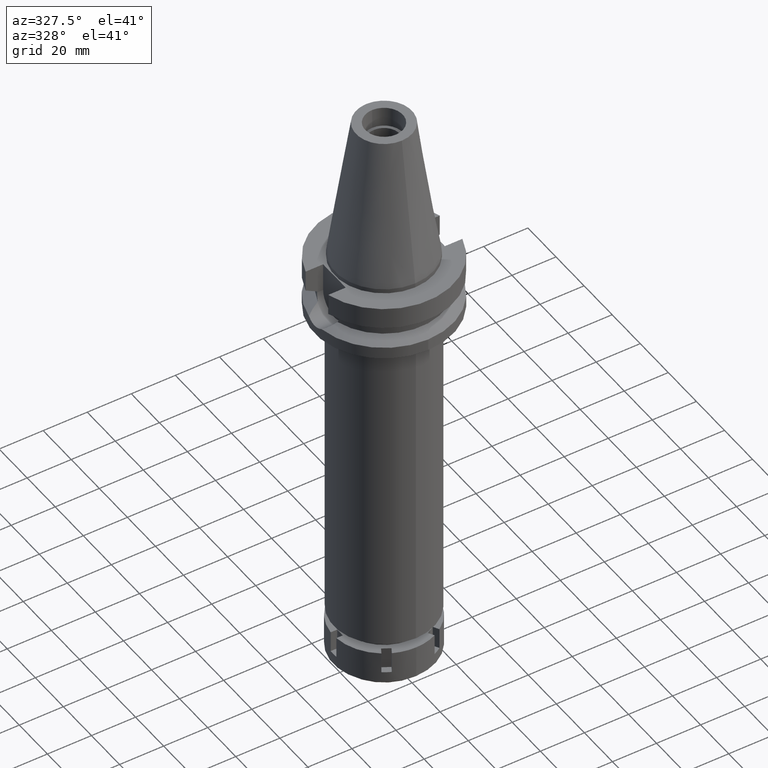
[diagram: clean part render]
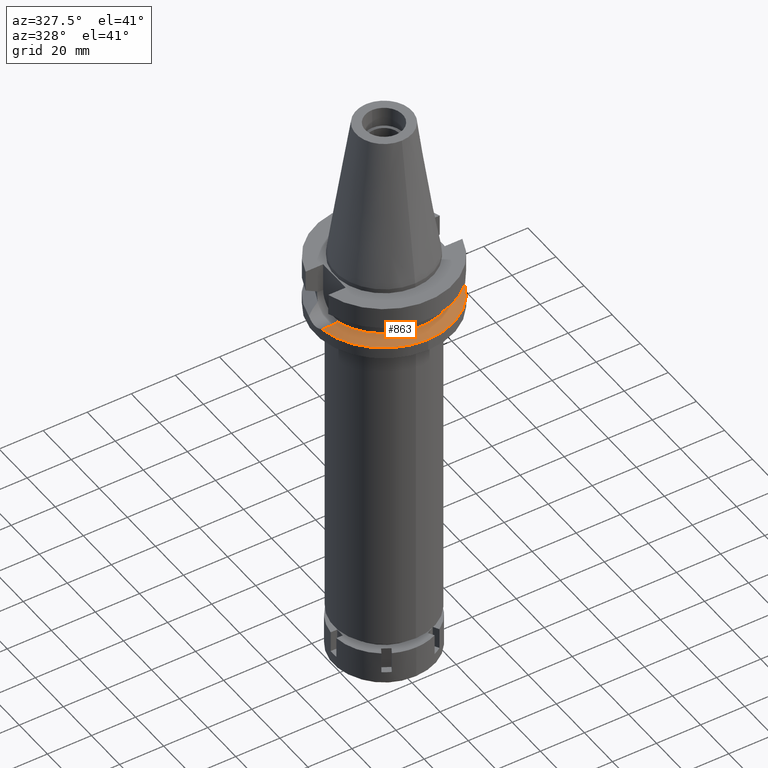
[diagram: same view with one face highlighted and labeled with its STEP entity id]
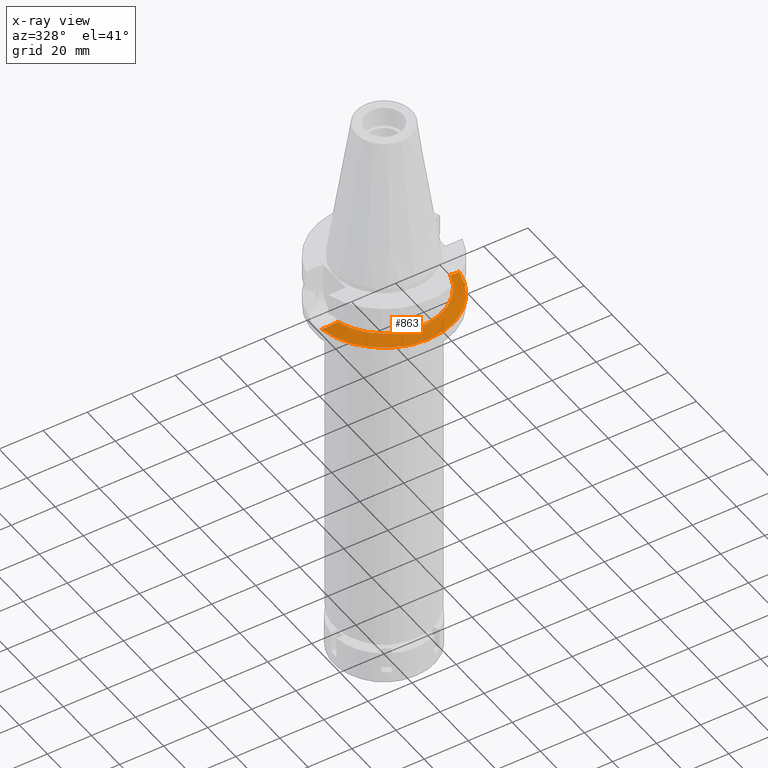
[diagram: x-ray of the same camera — body ghosted, the highlighted face saturated]
A machine part, auxiliary view. The second image highlights one B-rep face of the part: STEP entity #863.
The next image is the same camera in x-ray: the body ghosted, the highlighted face saturated — about 0% of this face is hidden behind the body in this view.
In plain terms, the highlighted conical surface has half-angle 60 deg.
Its self-contained STEP definition (entity closure, byte-faithful):
#56 = CARTESIAN_POINT ( 'NONE',  ( -31.17899877608999759, -4.485536235554000051, -21.63449434733000132 ) ) ;
#236 = CARTESIAN_POINT ( 'NONE',  ( 28.58345074653626128, -6.005726142762083164, -20.31044813112859870 ) ) ;
#253 = CARTESIAN_POINT ( 'NONE',  ( 31.17899877608999759, -4.485536235554000051, -21.63449434733000132 ) ) ;
#298 = CARTESIAN_POINT ( 'NONE',  ( 28.66615134121891373, -5.967711543033243693, -20.35268727737810224 ) ) ;
#476 = ORIENTED_EDGE ( 'NONE', *, *, #1170, .F. ) ;
#512 = CARTESIAN_POINT ( 'NONE',  ( 0.0000000000000000000, 0.0000000000000000000, -20.19111867435999841 ) ) ;
#539 = VERTEX_POINT ( 'NONE', #2566 ) ;
#572 = CARTESIAN_POINT ( 'NONE',  ( -28.63767204220782858, -5.980824232938217300, -20.33815959003102947 ) ) ;
#588 = CIRCLE ( 'NONE', #1706, 26.50000000000000000 ) ;
#627 = CARTESIAN_POINT ( 'NONE',  ( -30.44199459465934865, -5.010611258607330143, -21.25921041033202386 ) ) ;
#645 = CARTESIAN_POINT ( 'NONE',  ( -28.68532312955670349, -5.958819880568953842, -20.36250096398334009 ) ) ;
#724 = DIRECTION ( 'NONE',  ( 0.0000000000000000000, 0.0000000000000000000, -1.000000000000000000 ) ) ;
#817 = CARTESIAN_POINT ( 'NONE',  ( 31.17899877608999759, -4.485536235554000051, -21.63449434733000132 ) ) ;
#863 = ADVANCED_FACE ( 'NONE', ( #2997 ), #2105, .T. ) ;
#894 = CARTESIAN_POINT ( 'NONE',  ( 0.0000000000000000000, 0.0000000000000000000, -21.63449434733000132 ) ) ;
#985 = AXIS2_PLACEMENT_3D ( 'NONE', #2976, #724, #2699 ) ;
#1032 = EDGE_CURVE ( 'NONE', #2565, #2761, #2792, .T. ) ;
#1109 = AXIS2_PLACEMENT_3D ( 'NONE', #512, #1705, #2250 ) ;
#1170 = EDGE_CURVE ( 'NONE', #1960, #539, #588, .T. ) ;
#1359 = EDGE_CURVE ( 'NONE', #539, #2565, #2179, .T. ) ;
#1371 = CARTESIAN_POINT ( 'NONE',  ( 29.65836425427502121, -5.507691995537506990, -20.85948264667093710 ) ) ;
#1430 = B_SPLINE_CURVE_WITH_KNOTS ( 'NONE', 3,
 ( #56, #3135, #627, #1956, #2224, #1743, #2818, #2013, #3365, #645, #2781, #1712, #572, #3117, #1766, #2547 ),
 .UNSPECIFIED., .F., .F.,
 ( 4, 2, 2, 1, 1, 1, 1, 2, 2, 4 ),
 ( 0.0000000000000000000, 0.2500000000000095479, 0.3750000000000146549, 0.4375000000000168754, 0.4687500000000180411, 0.4843750000000189293, 0.4921875000000192069, 0.4960937500000187073, 0.5000000000000182077, 1.000000000000000000 ),
 .UNSPECIFIED. ) ;
#1447 = CARTESIAN_POINT ( 'NONE',  ( 28.62555250767049486, -5.986417390562371210, -20.33195126468094216 ) ) ;
#1468 = AXIS2_PLACEMENT_3D ( 'NONE', #894, #1681, #2011 ) ;
#1485 = DIRECTION ( 'NONE',  ( 0.0000000000000000000, -1.000000000000000000, 0.0000000000000000000 ) ) ;
#1490 = ORIENTED_EDGE ( 'NONE', *, *, #3297, .F. ) ;
#1627 = EDGE_CURVE ( 'NONE', #2761, #3622, #2665, .T. ) ;
#1645 = CARTESIAN_POINT ( 'NONE',  ( 28.48439720213906057, -6.050662583989559806, -20.25985942147510599 ) ) ;
#1680 = CARTESIAN_POINT ( 'NONE',  ( 27.74096340798840643, -6.365697239633576032, -19.88008663054536385 ) ) ;
#1681 = DIRECTION ( 'NONE',  ( 0.0000000000000000000, 0.0000000000000000000, -1.000000000000000000 ) ) ;
#1701 = CARTESIAN_POINT ( 'NONE',  ( 28.28302570634215130, -6.140044279155802087, -20.15701771900243244 ) ) ;
#1705 = DIRECTION ( 'NONE',  ( 0.0000000000000000000, 0.0000000000000000000, -1.000000000000000000 ) ) ;
#1706 = AXIS2_PLACEMENT_3D ( 'NONE', #2346, #3154, #1485 ) ;
#1712 = CARTESIAN_POINT ( 'NONE',  ( -28.64640856822300563, -5.976801166515333108, -20.34262241999118004 ) ) ;
#1743 = CARTESIAN_POINT ( 'NONE',  ( -29.23660748318335934, -5.690952155434661819, -20.64409152812684667 ) ) ;
#1749 = CARTESIAN_POINT ( 'NONE',  ( 0.0000000000000000000, -31.50000000000000000, -21.63449434733000132 ) ) ;
#1766 = CARTESIAN_POINT ( 'NONE',  ( -26.71871938466282614, -6.771585180958829220, -19.35754452521383939 ) ) ;
#1956 = CARTESIAN_POINT ( 'NONE',  ( -29.80494598258248118, -5.386897440520220570, -20.93425444495784049 ) ) ;
#1960 = VERTEX_POINT ( 'NONE', #1963 ) ;
#1963 = CARTESIAN_POINT ( 'NONE',  ( -25.53175183775000079, -7.097862220092999941, -18.74774300138999905 ) ) ;
#2007 = CARTESIAN_POINT ( 'NONE',  ( 27.48844005048883687, -6.463761724948072995, -19.75098574139025942 ) ) ;
#2011 = DIRECTION ( 'NONE',  ( 0.9898094849552905306, -0.1423979757318985240, 0.0000000000000000000 ) ) ;
#2013 = CARTESIAN_POINT ( 'NONE',  ( -28.84734289859800782, -5.882836229270892225, -20.44526482135034229 ) ) ;
#2021 = ORIENTED_EDGE ( 'NONE', *, *, #1032, .F. ) ;
#2105 = CONICAL_SURFACE ( 'NONE', #1109, 29.00000000000000000, 1.047197551196400456 ) ;
#2179 = B_SPLINE_CURVE_WITH_KNOTS ( 'NONE', 3,
 ( #2192, #3342, #3373, #2007, #1680, #2774, #1701, #1645, #236, #1447, #3063, #298, #1371, #2470, #817 ),
 .UNSPECIFIED., .F., .F.,
 ( 4, 2, 2, 1, 1, 1, 2, 2, 4 ),
 ( 0.0000000000000000000, 0.2499999999999774625, 0.3749999999999661382, 0.4374999999999601985, 0.4687499999999572009, 0.4843749999999556466, 0.4921874999999555356, 0.4999999999999553690, 1.000000000000000000 ),
 .UNSPECIFIED. ) ;
#2182 = CARTESIAN_POINT ( 'NONE',  ( -31.17899877608999759, -4.485536235554000051, -21.63449434733000132 ) ) ;
#2192 = CARTESIAN_POINT ( 'NONE',  ( 25.53175183775000079, -7.097862220092999941, -18.74774300138999905 ) ) ;
#2224 = CARTESIAN_POINT ( 'NONE',  ( -29.58323028122308784, -5.510106993099902262, -20.82108848418431890 ) ) ;
#2250 = DIRECTION ( 'NONE',  ( 0.0000000000000000000, -1.000000000000000000, 0.0000000000000000000 ) ) ;
#2346 = CARTESIAN_POINT ( 'NONE',  ( 0.0000000000000000000, 0.0000000000000000000, -18.74774300138999905 ) ) ;
#2470 = CARTESIAN_POINT ( 'NONE',  ( 30.49089179454970022, -5.007581427435558119, -21.28418323880252672 ) ) ;
#2493 = ORIENTED_EDGE ( 'NONE', *, *, #1359, .F. ) ;
#2547 = CARTESIAN_POINT ( 'NONE',  ( -25.53175183775000079, -7.097862220092999941, -18.74774300138999905 ) ) ;
#2565 = VERTEX_POINT ( 'NONE', #253 ) ;
#2566 = CARTESIAN_POINT ( 'NONE',  ( 25.53175183775000079, -7.097862220092999941, -18.74774300138999905 ) ) ;
#2665 = CIRCLE ( 'NONE', #985, 31.50000000000000000 ) ;
#2699 = DIRECTION ( 'NONE',  ( 0.0000000000000000000, -1.000000000000000000, 0.0000000000000000000 ) ) ;
#2761 = VERTEX_POINT ( 'NONE', #1749 ) ;
#2774 = CARTESIAN_POINT ( 'NONE',  ( 28.10482544079759037, -6.215739366876743333, -20.06599677539957227 ) ) ;
#2781 = CARTESIAN_POINT ( 'NONE',  ( -28.66198536872992619, -5.969612254753553060, -20.35057943896271127 ) ) ;
#2792 = CIRCLE ( 'NONE', #1468, 31.50000000000001421 ) ;
#2818 = CARTESIAN_POINT ( 'NONE',  ( -29.05978377266331591, -5.780382084587477820, -20.55378185280747871 ) ) ;
#2976 = CARTESIAN_POINT ( 'NONE',  ( 0.0000000000000000000, 0.0000000000000000000, -21.63449434733000132 ) ) ;
#2997 = FACE_OUTER_BOUND ( 'NONE', #3036, .T. ) ;
#3036 = EDGE_LOOP ( 'NONE', ( #3521, #2021, #2493, #476, #1490 ) ) ;
#3063 = CARTESIAN_POINT ( 'NONE',  ( 28.65354262445039879, -5.973533975474984992, -20.34624725464599138 ) ) ;
#3117 = CARTESIAN_POINT ( 'NONE',  ( -27.75173688134032801, -6.388054679521868451, -19.88560303664326057 ) ) ;
#3135 = CARTESIAN_POINT ( 'NONE',  ( -30.82922901337553867, -4.750895587792471453, -21.45642867354247940 ) ) ;
#3154 = DIRECTION ( 'NONE',  ( 0.0000000000000000000, 0.0000000000000000000, 1.000000000000000000 ) ) ;
#3297 = EDGE_CURVE ( 'NONE', #3622, #1960, #1430, .T. ) ;
#3342 = CARTESIAN_POINT ( 'NONE',  ( 26.13628524235013728, -6.931686346265456322, -19.05832048287956937 ) ) ;
#3365 = CARTESIAN_POINT ( 'NONE',  ( -28.73958582528404548, -5.933574914454016636, -20.39021978767738474 ) ) ;
#3373 = CARTESIAN_POINT ( 'NONE',  ( 26.70102397110986203, -6.750478623235119713, -19.34798331749800582 ) ) ;
#3521 = ORIENTED_EDGE ( 'NONE', *, *, #1627, .F. ) ;
#3622 = VERTEX_POINT ( 'NONE', #2182 ) ;